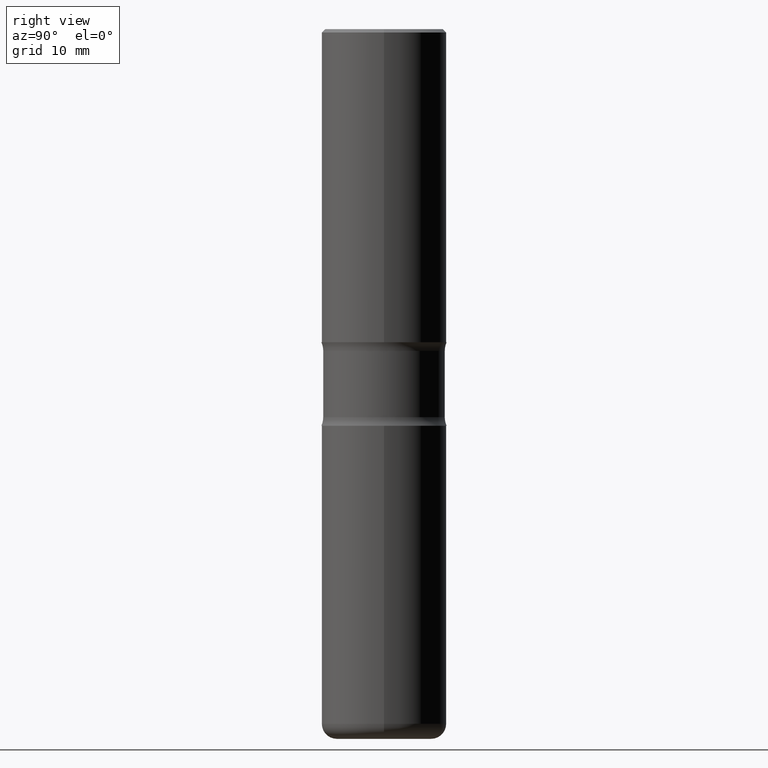
[diagram: clean part render]
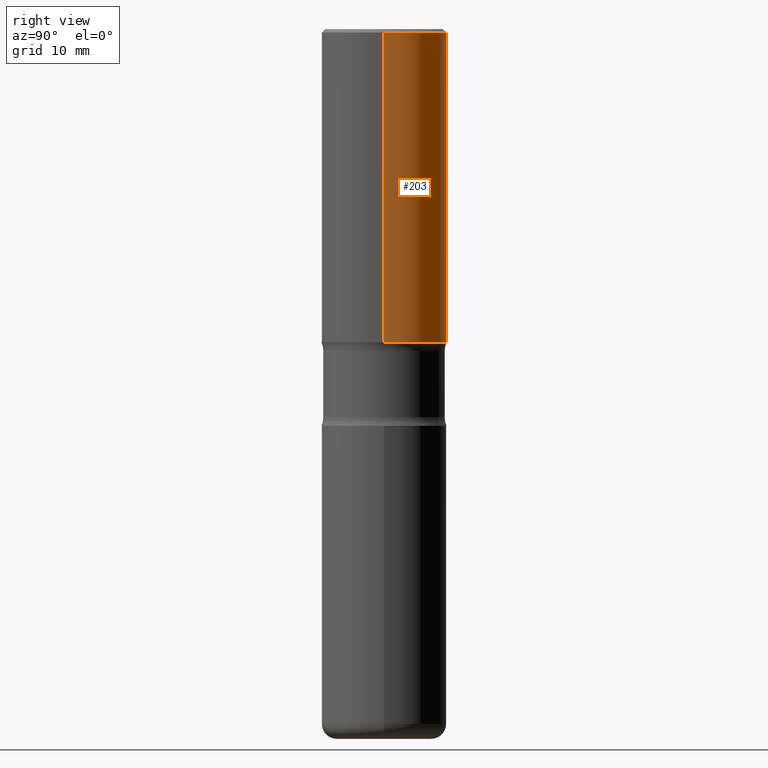
[diagram: same view with one face highlighted and labeled with its STEP entity id]
A machine part, right view. The second image highlights one B-rep face of the part: STEP entity #203.
In plain terms, the highlighted cylindrical surface (partial cylindrical patch) has radius 9.525 mm, axis along (-0, 0, 1).
Its self-contained STEP definition (entity closure, byte-faithful):
#23 = VERTEX_POINT ( 'NONE', #226 ) ;
#41 = ORIENTED_EDGE ( 'NONE', *, *, #556, .T. ) ;
#58 = EDGE_CURVE ( 'NONE', #253, #257, #80, .T. ) ;
#70 = DIRECTION ( 'NONE',  ( -2.445468806185136597E-29, 3.491481338843145583E-15, 1.000000000000000000 ) ) ;
#71 = CARTESIAN_POINT ( 'NONE',  ( 4.585254011597131679E-29, -6.546527510330899496E-15, -1.875000000000000444 ) ) ;
#80 = CIRCLE ( 'NONE', #229, 0.3750000000000000555 ) ;
#107 = CARTESIAN_POINT ( 'NONE',  ( 0.000000000000000000, 0.000000000000000000, 0.000000000000000000 ) ) ;
#110 = CARTESIAN_POINT ( 'NONE',  ( 0.3750000000000001665, -2.618611004132351200E-15, 1.828566290923476763E-29 ) ) ;
#115 = VECTOR ( 'NONE', #523, 39.37007874015748143 ) ;
#117 = CYLINDRICAL_SURFACE ( 'NONE', #476, 0.3750000000000001665 ) ;
#149 = FACE_OUTER_BOUND ( 'NONE', #236, .T. ) ;
#192 = CARTESIAN_POINT ( 'NONE',  ( 4.890937612370289799E-31, -6.982962677686315028E-17, -0.02000000000000006981 ) ) ;
#203 = ADVANCED_FACE ( 'NONE', ( #149 ), #117, .T. ) ;
#226 = CARTESIAN_POINT ( 'NONE',  ( -0.3750000000000002776, -6.436433094535016571E-16, -1.875000000000000444 ) ) ;
#229 = AXIS2_PLACEMENT_3D ( 'NONE', #192, #547, #534 ) ;
#236 = EDGE_LOOP ( 'NONE', ( #41, #483, #460, #560 ) ) ;
#238 = DIRECTION ( 'NONE',  ( -2.445468806185136597E-29, 3.491481338843145583E-15, 1.000000000000000000 ) ) ;
#241 = VERTEX_POINT ( 'NONE', #410 ) ;
#253 = VERTEX_POINT ( 'NONE', #371 ) ;
#257 = VERTEX_POINT ( 'NONE', #542 ) ;
#260 = CIRCLE ( 'NONE', #493, 0.3750000000000002776 ) ;
#277 = DIRECTION ( 'NONE',  ( -2.445468806185136877E-29, 3.491481338843145188E-15, 1.000000000000000000 ) ) ;
#282 = VECTOR ( 'NONE', #277, 39.37007874015748143 ) ;
#329 = DIRECTION ( 'NONE',  ( 1.000000000000000000, -6.982962677686265922E-15, 0.000000000000000000 ) ) ;
#353 = LINE ( 'NONE', #404, #115 ) ;
#371 = CARTESIAN_POINT ( 'NONE',  ( 0.3750000000000000555, -2.642516375941188029E-15, -0.02000000000000006981 ) ) ;
#404 = CARTESIAN_POINT ( 'NONE',  ( -0.3750000000000001665, 2.664535259100376880E-15, -1.844600658845590439E-29 ) ) ;
#410 = CARTESIAN_POINT ( 'NONE',  ( 0.3750000000000002776, -9.165138514463251879E-15, -1.875000000000000444 ) ) ;
#441 = EDGE_CURVE ( 'NONE', #23, #257, #353, .T. ) ;
#460 = ORIENTED_EDGE ( 'NONE', *, *, #58, .F. ) ;
#464 = LINE ( 'NONE', #110, #282 ) ;
#476 = AXIS2_PLACEMENT_3D ( 'NONE', #107, #70, #546 ) ;
#483 = ORIENTED_EDGE ( 'NONE', *, *, #441, .T. ) ;
#493 = AXIS2_PLACEMENT_3D ( 'NONE', #71, #238, #329 ) ;
#523 = DIRECTION ( 'NONE',  ( -2.445468806185136877E-29, 3.491481338843145188E-15, 1.000000000000000000 ) ) ;
#524 = EDGE_CURVE ( 'NONE', #241, #253, #464, .T. ) ;
#534 = DIRECTION ( 'NONE',  ( 1.000000000000000000, -6.982962677686265922E-15, 0.000000000000000000 ) ) ;
#542 = CARTESIAN_POINT ( 'NONE',  ( -0.3750000000000000555, 2.548781377355486718E-15, -0.02000000000000006981 ) ) ;
#546 = DIRECTION ( 'NONE',  ( 1.000000000000000000, -6.982962677686266711E-15, 4.876176775795935793E-29 ) ) ;
#547 = DIRECTION ( 'NONE',  ( -2.445468806185136597E-29, 3.491481338843145583E-15, 1.000000000000000000 ) ) ;
#556 = EDGE_CURVE ( 'NONE', #241, #23, #260, .T. ) ;
#560 = ORIENTED_EDGE ( 'NONE', *, *, #524, .F. ) ;